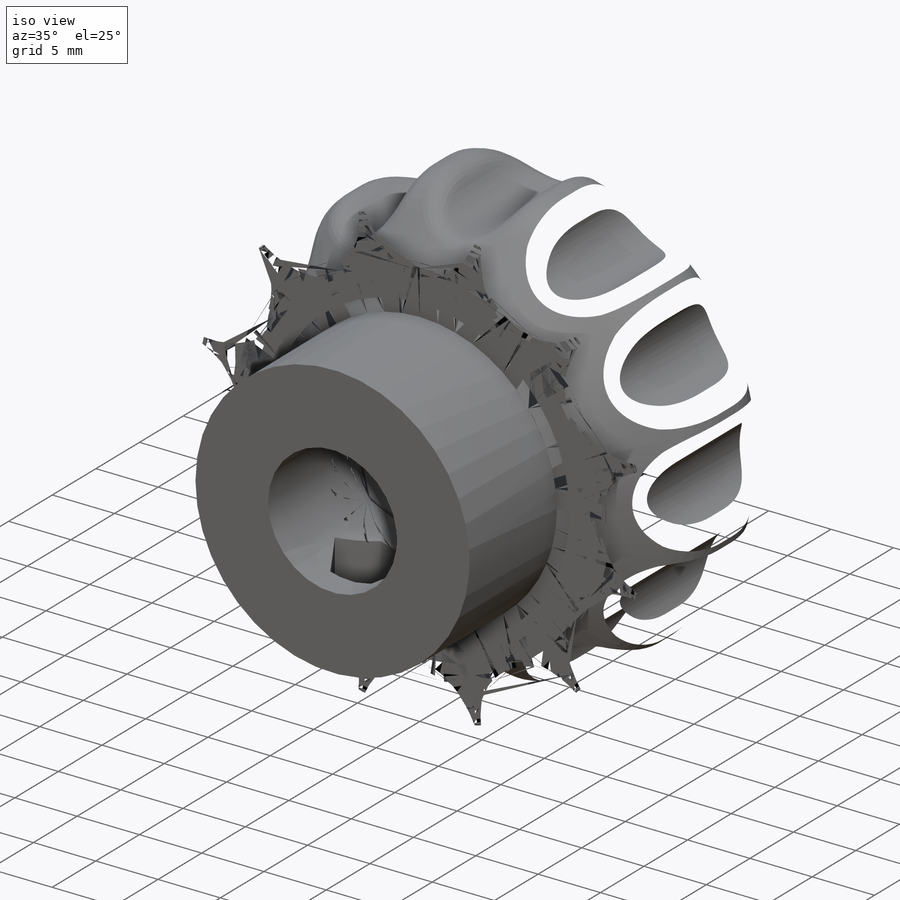
[diagram: iso view]
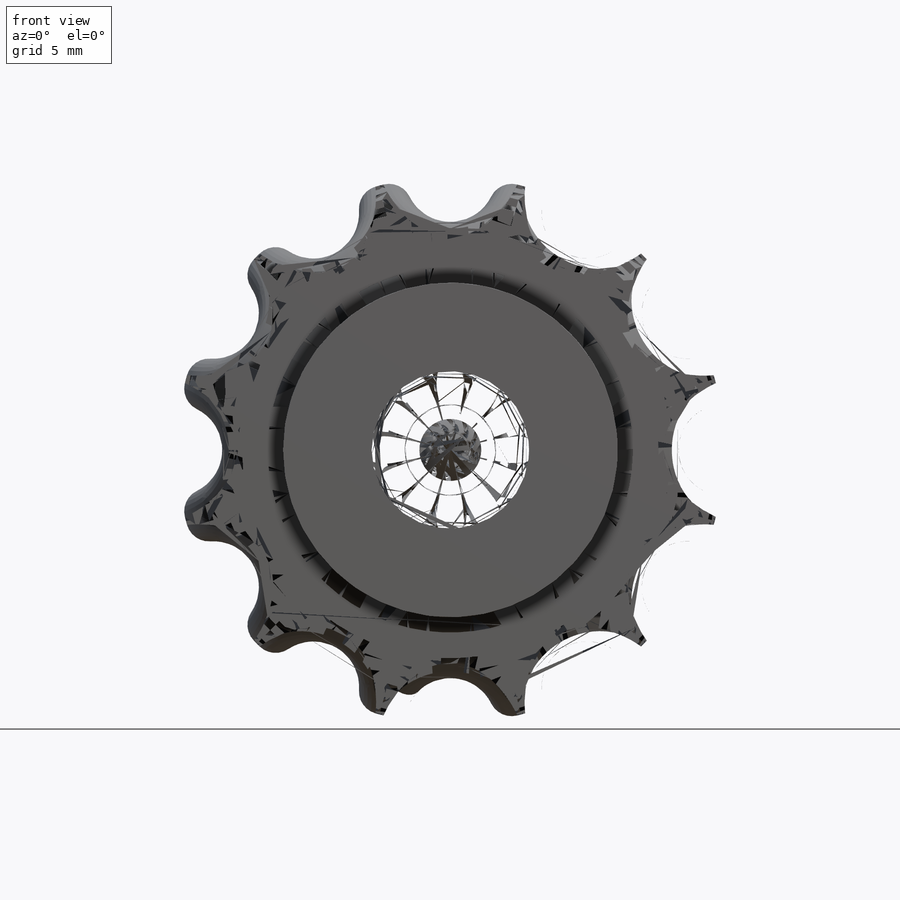
[diagram: front view]
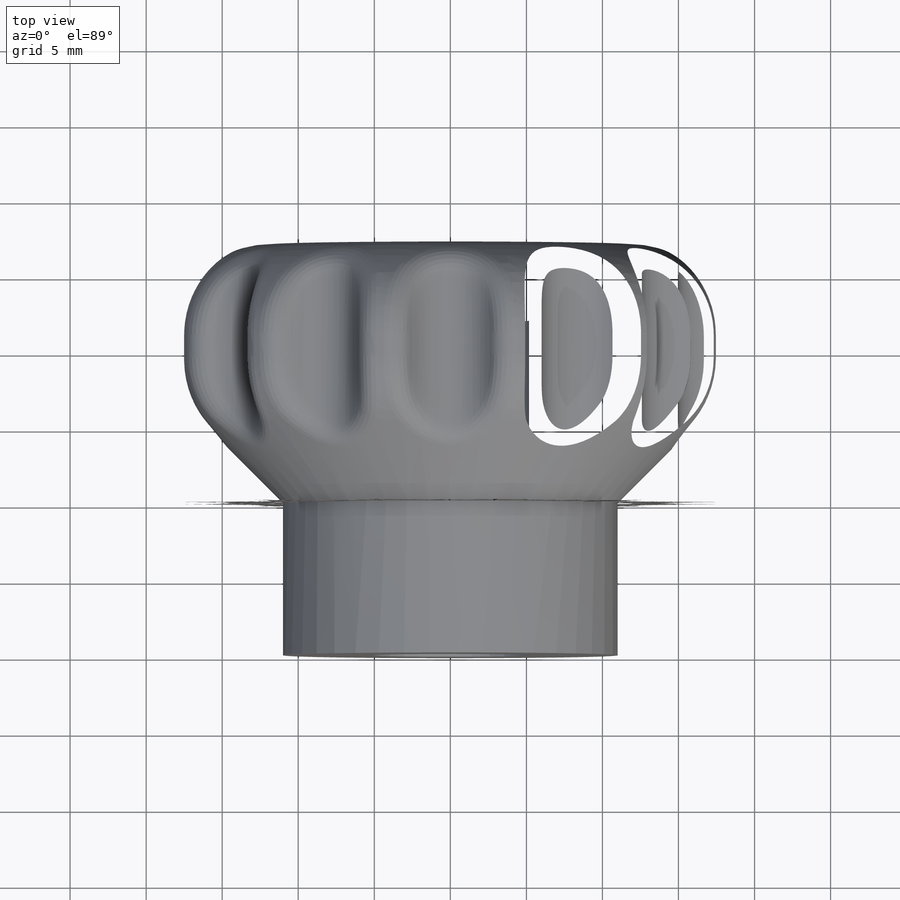
[diagram: top view]
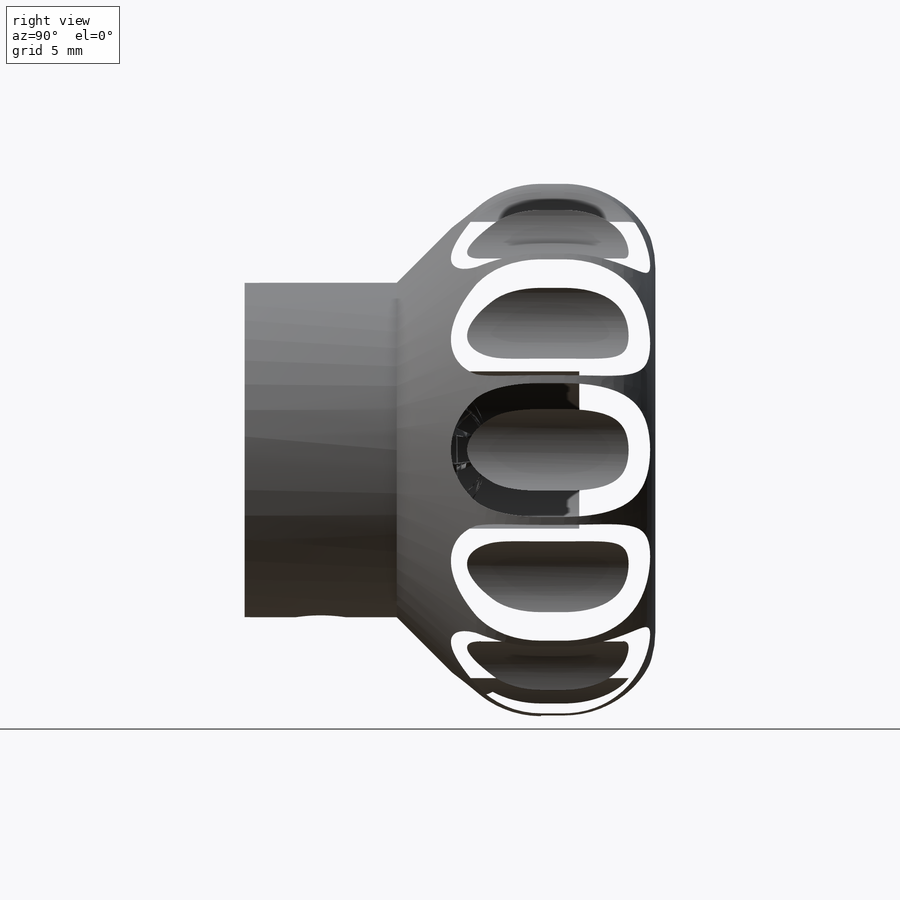
[diagram: right view]
SOLIDWORKS PART (.sldprt)
format: sldprt  version: not decoded by parser v0  size: 1,147,904 bytes
history: native  units: mm
features: sketch x6, cut_extrude x4, material x1, extrude x1, revolve x1, fillet x1 (+13 scaffold rows collapsed)
feature tree (27):
  scaffold x13  (default folders/planes/origin — collapsed)
  material  "ABS"
  sketch  "Sketch1"  dims[D1=10.35mm D2=22.0mm]
  extrude  "Boss-Extrude1"  Depth=10mm
  sketch  "Sketch2"  dims[D1=5.75mm D2=3.35mm]
  cut_extrude  "Cut-Extrude1"  Depth=8mm
  cut_extrude  "Cut-Extrude2"  [1 undecoded]
  sketch  "Sketch2<3>"
  sketch  "Sketch3"  dims[c1.D1=6.0mm c1.D2=18.0mm c1.D3=~2.764434mm c2.D3=135.0deg c2.D4=17.0mm]
  revolve  "Revolve1"  Angle=360deg
  sketch  "Sketch4"  dims[D1=6.0mm D2=12.0]
  cut_extrude  "Cut-Extrude3"  [1 undecoded]
  fillet  "Fillet1"  Radius=1.5mm
  sketch  "Sketch5"
  cut_extrude  "Cut-Extrude4"  Depth=12mm
decode coverage: 9 of 13 modeling features carry decoded parameters
note: ~ marks probable driven/reference dimensions
note: 2 parameter values undecoded
note: suppression state not decoded; provenance and decode notes live in map.json
